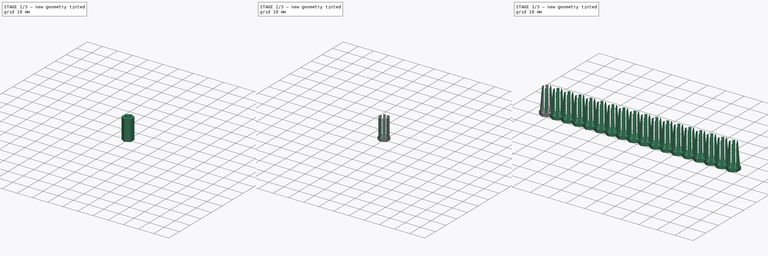
[diagram: build sequence overview — one tinted view per stage of 3, left to right]
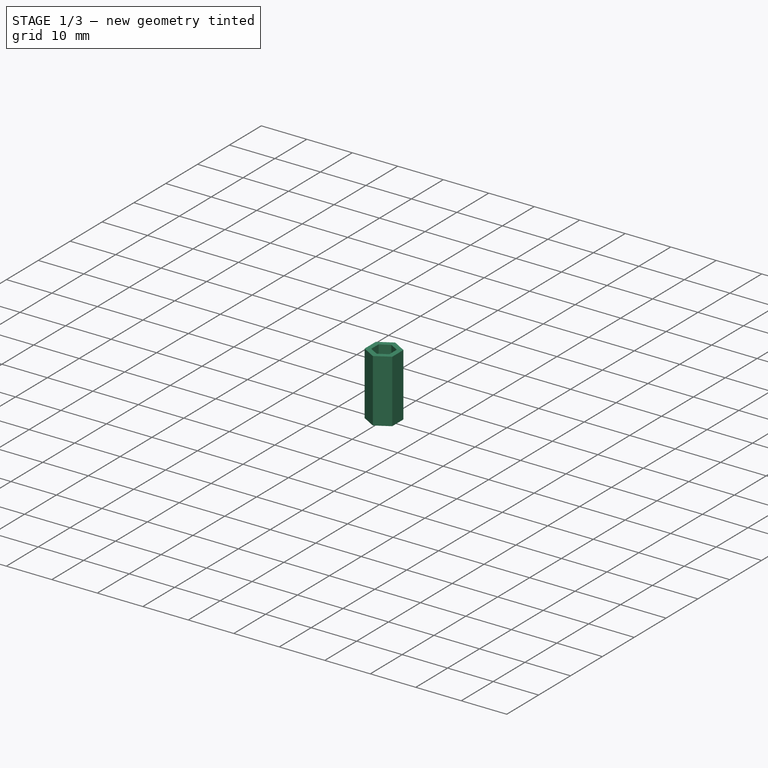
[diagram: stage 1 of 3 — iso view after this stage's code; geometry added in this stage tinted green]
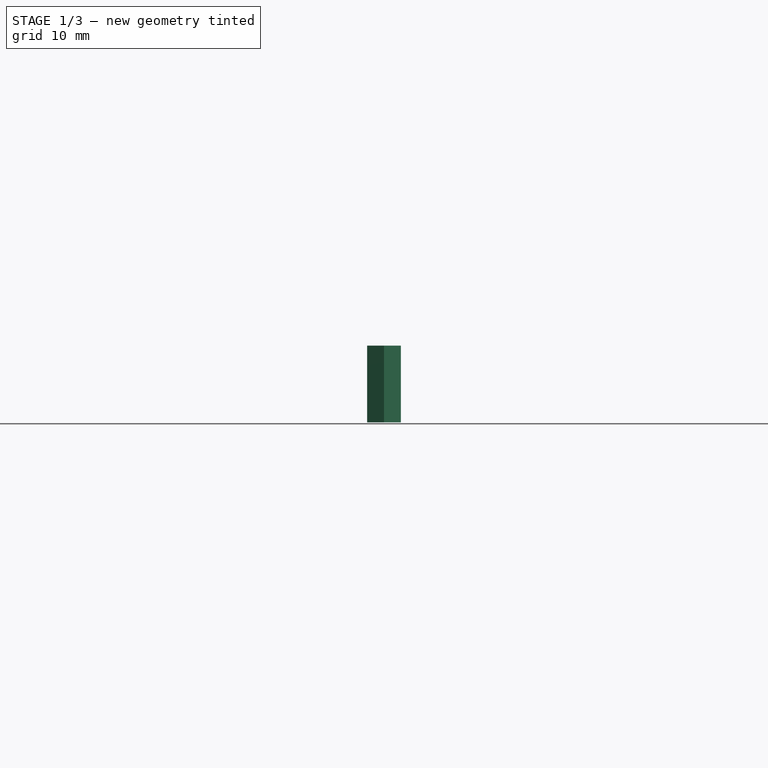
[diagram: stage 1 of 3 — front view after this stage's code; geometry added in this stage tinted green]
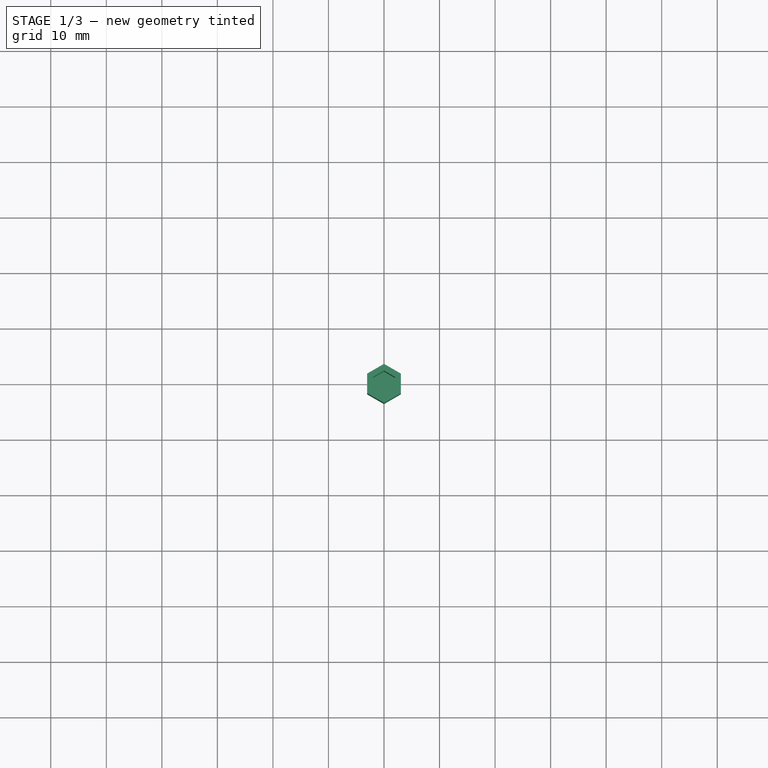
[diagram: stage 1 of 3 — top view after this stage's code; geometry added in this stage tinted green]
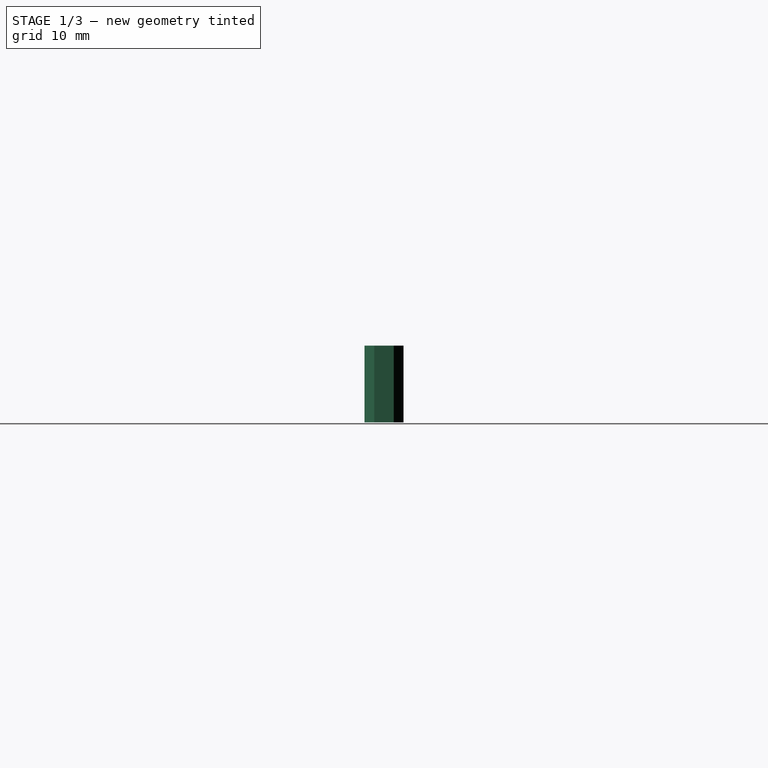
[diagram: stage 1 of 3 — right view after this stage's code; geometry added in this stage tinted green]
FCSTD DOCUMENT  (FreeCAD 1.0R39285 (Git))
Label: pla-4mm-18-tool-holder
License: All rights reserved
LicenseURL: http://en.wikipedia.org/wiki/All_rights_reserved
objects: Sketcher::SketchObject×3, PartDesign::Pad×2, PartDesign::Pocket×1, PartDesign::Chamfer×1, PartDesign::LinearPattern×1, PartDesign::Body×1
note: 21 computed .brp shape members not serialized (recipe doc carries the construction recipe); baked Part::Feature solids carry a one-line shape summary decoded from their .brp

FEATURE [Sketcher::SketchObject] Sketch
  ArcFitTolerance = 1e-06
  AttachmentSupport = -> [XY_Plane]
  FullyConstrained = true
  MakeInternals = false
  MapMode = 5
  sketch-geometry (14):
    g0: LineSegment StartX=0 StartY=-2.3094 StartZ=0 EndX=2 EndY=-1.1547 EndZ=0
    g1: LineSegment StartX=2 StartY=-1.1547 StartZ=0 EndX=2 EndY=1.1547 EndZ=0
    g2: LineSegment StartX=2 StartY=1.1547 StartZ=0 EndX=-2e-16 EndY=2.3094 EndZ=0
    g3: LineSegment StartX=-2e-16 StartY=2.3094 StartZ=0 EndX=-2 EndY=1.1547 EndZ=0
    g4: LineSegment StartX=-2 StartY=1.1547 StartZ=0 EndX=-2 EndY=-1.1547 EndZ=0
    g5: LineSegment StartX=-2 StartY=-1.1547 StartZ=0 EndX=0 EndY=-2.3094 EndZ=0
    g6: Circle [constr] CenterX=0 CenterY=0 CenterZ=0 NormalX=0 NormalY=0 NormalZ=1 AngleXU=0 Radius=2.3094
    g7: LineSegment StartX=-3.03923 StartY=-1.7547 StartZ=0 EndX=0 EndY=-3.5094 EndZ=0
    g8: LineSegment StartX=0 StartY=-3.5094 StartZ=0 EndX=3.03923 EndY=-1.7547 EndZ=0
    g9: LineSegment StartX=3.03923 StartY=-1.7547 StartZ=0 EndX=3.03923 EndY=1.7547 EndZ=0
    g10: LineSegment StartX=3.03923 StartY=1.7547 StartZ=0 EndX=0 EndY=3.5094 EndZ=0
    g11: LineSegment StartX=0 StartY=3.5094 StartZ=0 EndX=-3.03923 EndY=1.7547 EndZ=0
    g12: LineSegment StartX=-3.03923 StartY=1.7547 StartZ=0 EndX=-3.03923 EndY=-1.7547 EndZ=0
    g13: Circle [constr] CenterX=0 CenterY=0 CenterZ=0 NormalX=0 NormalY=0 NormalZ=1 AngleXU=0 Radius=3.5094
  constraints (32):
    c: Coincident(g0,g1)
    c: Coincident(g1,g2)
    c: Coincident(g2,g3)
    c: Coincident(g3,g4)
    c: Coincident(g4,g5)
    c: Coincident(g5,g0)
    c: Equal(g0, g1-g5) x5
    c: PointOnObject(g0,g6)
    c: PointOnObject(g1,g6)
    c: PointOnObject(g2,g6)
    c: PointOnObject(g3,g6)
    c: PointOnObject(g4,g6)
    c: PointOnObject(g5,g6)
    c: Coincident(g6,g-1)
    c: PointOnObject(g5,g-2)
    c: DistanceX(g3,g1) = 4
    c: Coincident(g7,g8)
    c: Coincident(g8,g9)
    c: Coincident(g9,g10)
    c: Coincident(g10,g11)
    c: Coincident(g11,g12)
    c: Coincident(g12,g7)
    c: Equal(g7, g8-g12) x5
    c: PointOnObject(g7,g13)
    c: PointOnObject(g8,g13)
    c: PointOnObject(g9,g13)
    c: PointOnObject(g10,g13)
    c: PointOnObject(g11,g13)
    c: PointOnObject(g12,g13)
    c: Coincident(g13,g6)
    c: PointOnObject(g7,g-2)
    c: DistanceY(g2,g10) = 1.2
FEATURE [PartDesign::Pad] Pad
  Direction = (0,0,1)
  Length = 12
  Length2 = 10
  Profile = -> Sketch
  ReferenceAxis = -> Sketch [N_Axis]
  Refine = true
  Suppressed = false
  Type = 0
FEATURE [Sketcher::SketchObject] Sketch001
  ArcFitTolerance = 1e-06
  AttachmentSupport = -> [Pad]
  ExternalGeometry = -> [Pad]
  FullyConstrained = true
  MakeInternals = false
  MapMode = 5
  Placement = pos=(0,0,0) rot=(1,0,0;3.14159rad)
  sketch-geometry (7):
    g0: LineSegment StartX=3.03923 StartY=-1.7547 StartZ=0 EndX=3.03923 EndY=1.7547 EndZ=0
    g1: LineSegment StartX=3.03923 StartY=1.7547 StartZ=0 EndX=4e-16 EndY=3.5094 EndZ=0
    g2: LineSegment StartX=4e-16 StartY=3.5094 StartZ=0 EndX=-3.03923 EndY=1.7547 EndZ=0
    g3: LineSegment StartX=-3.03923 StartY=1.7547 StartZ=0 EndX=-3.03923 EndY=-1.7547 EndZ=0
    g4: LineSegment StartX=-3.03923 StartY=-1.7547 StartZ=0 EndX=4e-16 EndY=-3.5094 EndZ=0
    g5: LineSegment StartX=2e-16 StartY=-3.5094 StartZ=0 EndX=3.03923 EndY=-1.7547 EndZ=0
    g6: Circle [constr] CenterX=0 CenterY=0 CenterZ=0 NormalX=0 NormalY=0 NormalZ=1 AngleXU=0 Radius=3.5094
  constraints (15):
    c: Coincident(g0,g1)
    c: Coincident(g1,g2)
    c: Coincident(g2,g3)
    c: Coincident(g3,g4)
    c: Coincident(g4,g5)
    c: Coincident(g5,g0)
    c: Equal(g0, g1-g5) x5
    c: PointOnObject(g0,g6)
    c: PointOnObject(g1,g6)
    c: PointOnObject(g2,g6)
    c: PointOnObject(g3,g6)
    c: PointOnObject(g4,g6)
    c: PointOnObject(g5,g6)
    c: Coincident(g6,g-1)
    c: Coincident(g5,g-5)
FEATURE [PartDesign::Pad] Pad001
  BaseFeature = -> Pad
  Direction = (0,0,-1)
  Length = 1.8
  Length2 = 10
  Profile = -> Sketch001
  ReferenceAxis = -> Sketch001 [N_Axis]
  Refine = true
  Suppressed = false
  Type = 0
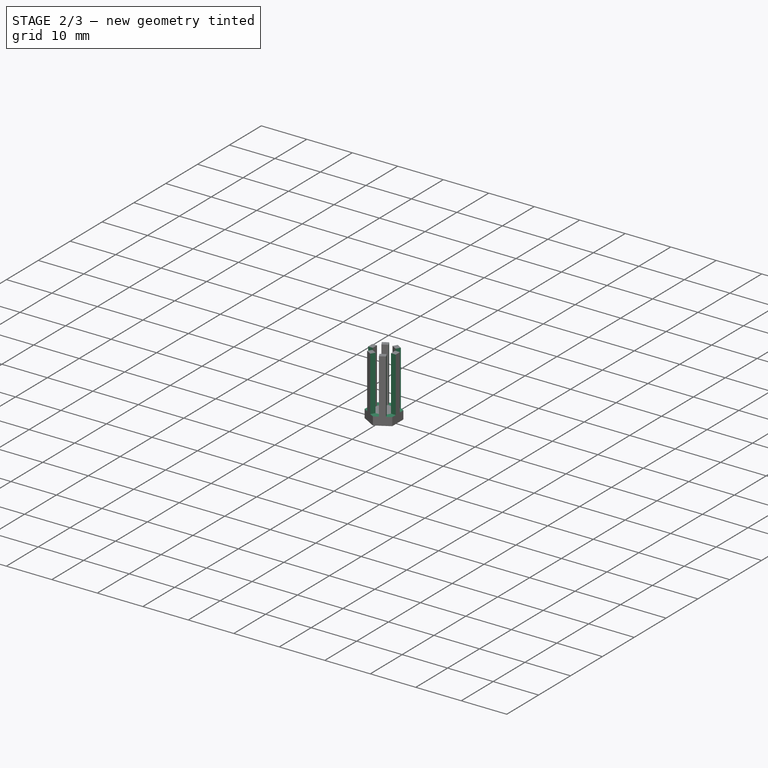
[diagram: stage 2 of 3 — iso view after this stage's code; geometry added in this stage tinted green]
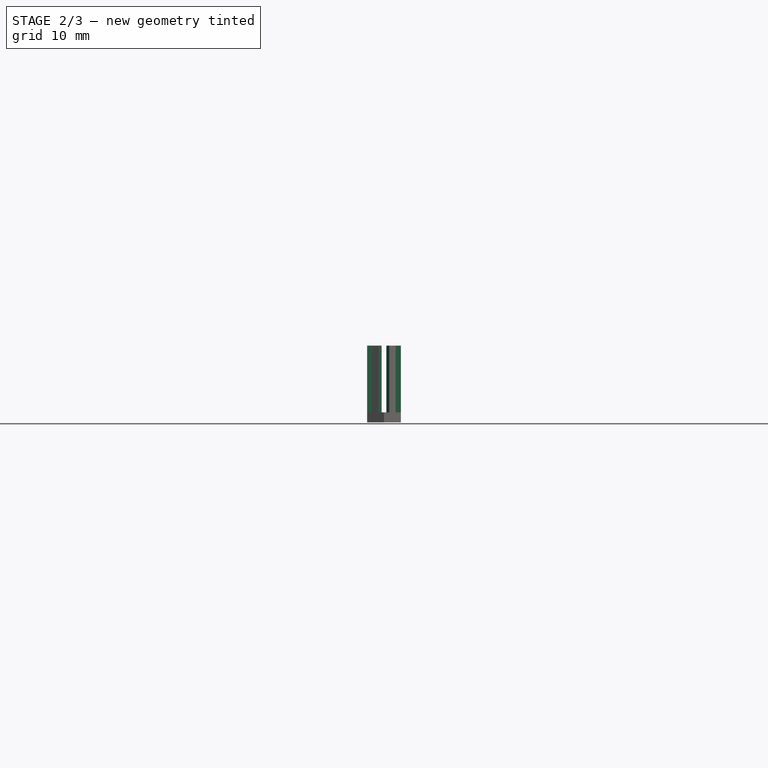
[diagram: stage 2 of 3 — front view after this stage's code; geometry added in this stage tinted green]
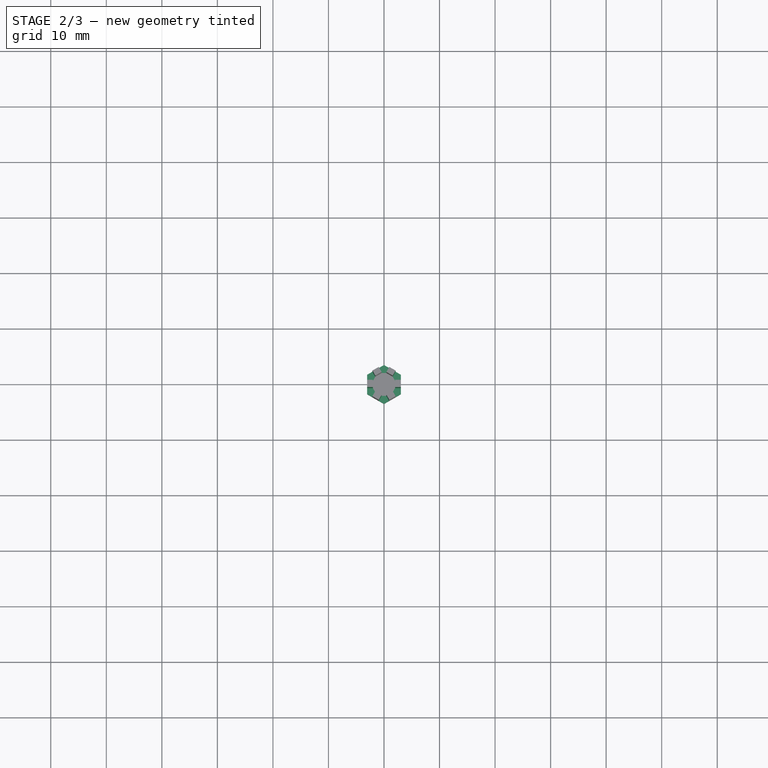
[diagram: stage 2 of 3 — top view after this stage's code; geometry added in this stage tinted green]
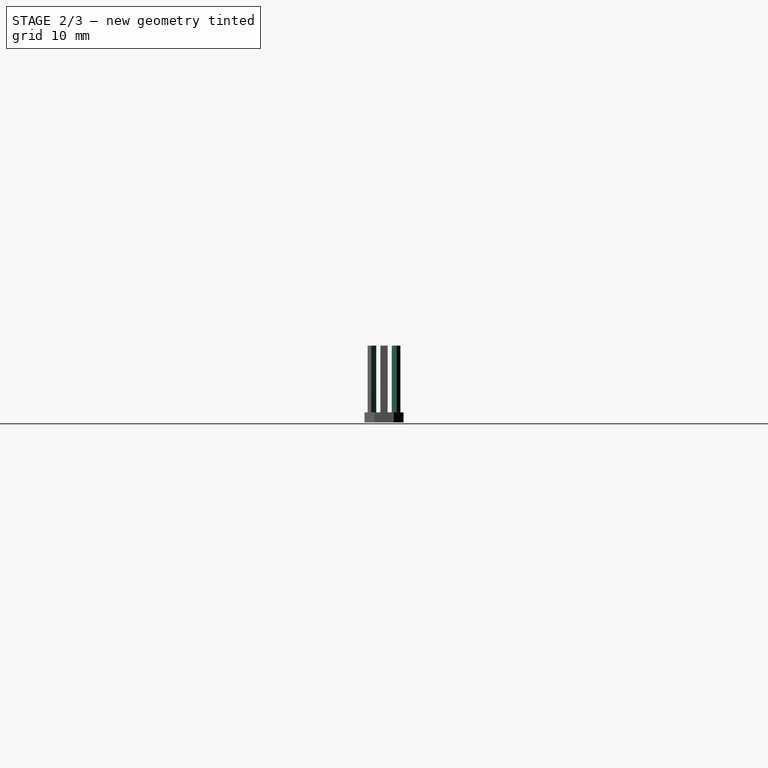
[diagram: stage 2 of 3 — right view after this stage's code; geometry added in this stage tinted green]
FEATURE [Sketcher::SketchObject] Sketch002
  ArcFitTolerance = 1e-06
  AttachmentSupport = -> [Pad001]
  ExternalGeometry = -> [Pad001]
  FullyConstrained = false
  MakeInternals = false
  MapMode = 5
  Placement = pos=(0,0,12) rot=(0,0,1;0rad)
  sketch-geometry (50):
    g0: LineSegment [constr] StartX=-3.03923 StartY=0.654701 StartZ=0 EndX=-3.03923 EndY=-0.654701 EndZ=0
    g1: LineSegment StartX=-3.03923 StartY=-0.654701 StartZ=0 EndX=-2 EndY=-0.654701 EndZ=0
    g2: LineSegment [constr] StartX=-2 StartY=-0.654701 StartZ=0 EndX=-2 EndY=0.654701 EndZ=0
    g3: LineSegment StartX=-2 StartY=0.654701 StartZ=0 EndX=-3.03923 EndY=0.654701 EndZ=0
    g4: LineSegment StartX=2 StartY=-0.654701 StartZ=0 EndX=3.03923 EndY=-0.654701 EndZ=0
    g5: LineSegment [constr] StartX=3.03923 StartY=-0.654701 StartZ=0 EndX=3.03923 EndY=0.654701 EndZ=0
    g6: LineSegment StartX=3.03923 StartY=0.654701 StartZ=0 EndX=2 EndY=0.654701 EndZ=0
    g7: LineSegment [constr] StartX=2 StartY=0.654701 StartZ=0 EndX=2 EndY=-0.654701 EndZ=0
    g8: LineSegment StartX=1.56699 StartY=1.4047 StartZ=0 EndX=2.0866 EndY=2.3047 EndZ=0
    g9: LineSegment [constr] StartX=2.0866 StartY=2.3047 StartZ=0 EndX=0.952628 EndY=2.9594 EndZ=0
    g10: LineSegment StartX=0.952628 StartY=2.9594 StartZ=0 EndX=0.433013 EndY=2.0594 EndZ=0
    g11: LineSegment [constr] StartX=0.433013 StartY=2.0594 StartZ=0 EndX=1.56699 EndY=1.4047 EndZ=0
    g12: LineSegment StartX=-0.433013 StartY=2.0594 StartZ=0 EndX=-0.952628 EndY=2.9594 EndZ=0
    g13: LineSegment [constr] StartX=-0.952628 StartY=2.9594 StartZ=0 EndX=-2.0866 EndY=2.3047 EndZ=0
    g14: LineSegment StartX=-2.0866 StartY=2.3047 StartZ=0 EndX=-1.56699 EndY=1.4047 EndZ=0
    g15: LineSegment [constr] StartX=-1.56699 StartY=1.4047 StartZ=0 EndX=-0.433013 EndY=2.0594 EndZ=0
    g16: LineSegment StartX=-1.56699 StartY=-1.4047 StartZ=0 EndX=-2.0866 EndY=-2.3047 EndZ=0
    g17: LineSegment [constr] StartX=-2.0866 StartY=-2.3047 StartZ=0 EndX=-0.952628 EndY=-2.9594 EndZ=0
    g18: LineSegment StartX=-0.952628 StartY=-2.9594 StartZ=0 EndX=-0.433013 EndY=-2.0594 EndZ=0
    g19: LineSegment [constr] StartX=-0.433013 StartY=-2.0594 StartZ=0 EndX=-1.56699 EndY=-1.4047 EndZ=0
    g20: LineSegment StartX=0.433013 StartY=-2.0594 StartZ=0 EndX=0.952628 EndY=-2.9594 EndZ=0
    g21: LineSegment [constr] StartX=0.952628 StartY=-2.9594 StartZ=0 EndX=2.0866 EndY=-2.3047 EndZ=0
    g22: LineSegment StartX=2.0866 StartY=-2.3047 StartZ=0 EndX=1.56699 EndY=-1.4047 EndZ=0
    g23: LineSegment [constr] StartX=1.56699 StartY=-1.4047 StartZ=0 EndX=0.433013 EndY=-2.0594 EndZ=0
    g24: LineSegment [constr] StartX=2.01248 StartY=3.48572 StartZ=0 EndX=-2.01248 EndY=-3.48572 EndZ=0
    g25: LineSegment [constr] StartX=-2.01248 StartY=3.48572 StartZ=0 EndX=2.01248 EndY=-3.48572 EndZ=0
    g26: LineSegment StartX=-2 StartY=0.654701 StartZ=0 EndX=-2 EndY=1.1547 EndZ=0
    g27: LineSegment StartX=-3.03923 StartY=0.654701 StartZ=0 EndX=-3.03923 EndY=1.7547 EndZ=0
    g28: LineSegment StartX=-0.952628 StartY=2.9594 StartZ=0 EndX=0 EndY=3.5094 EndZ=0
    g29: LineSegment StartX=-0.433013 StartY=2.0594 StartZ=0 EndX=0 EndY=2.3094 EndZ=0
    g30: LineSegment StartX=2.0866 StartY=2.3047 StartZ=0 EndX=3.03923 EndY=1.7547 EndZ=0
    g31: LineSegment StartX=2 StartY=0.654701 StartZ=0 EndX=2 EndY=1.1547 EndZ=0
    g32: LineSegment StartX=3.03923 StartY=-0.654701 StartZ=0 EndX=3.03923 EndY=-1.7547 EndZ=0
    g33: LineSegment StartX=3.03923 StartY=-1.7547 StartZ=0 EndX=2.0866 EndY=-2.3047 EndZ=0
    g34: LineSegment StartX=1.56699 StartY=-1.4047 StartZ=0 EndX=2 EndY=-1.1547 EndZ=0
    g35: LineSegment StartX=2 StartY=-1.1547 StartZ=0 EndX=2 EndY=-0.654701 EndZ=0
    g36: LineSegment StartX=3.03923 StartY=0.654701 StartZ=0 EndX=3.03923 EndY=1.7547 EndZ=0
    g37: LineSegment StartX=0.952628 StartY=2.9594 StartZ=0 EndX=0 EndY=3.5094 EndZ=0
    g38: LineSegment StartX=-3.03923 StartY=1.7547 StartZ=0 EndX=-2.0866 EndY=2.3047 EndZ=0
    g39: LineSegment StartX=-1.56699 StartY=1.4047 StartZ=0 EndX=-2 EndY=1.1547 EndZ=0
    g40: LineSegment StartX=-1.56699 StartY=-1.4047 StartZ=0 EndX=-2 EndY=-1.1547 EndZ=0
    g41: LineSegment StartX=-2 StartY=-1.1547 StartZ=0 EndX=-2 EndY=-0.654701 EndZ=0
    g42: LineSegment StartX=-3.03923 StartY=-0.654701 StartZ=0 EndX=-3.03923 EndY=-1.7547 EndZ=0
    g43: LineSegment StartX=-3.03923 StartY=-1.7547 StartZ=0 EndX=-2.0866 EndY=-2.3047 EndZ=0
    g44: LineSegment StartX=-0.952628 StartY=-2.9594 StartZ=0 EndX=1e-16 EndY=-3.5094 EndZ=0
    g45: LineSegment StartX=1e-16 StartY=-3.5094 StartZ=0 EndX=0.952628 EndY=-2.9594 EndZ=0
    g46: LineSegment StartX=0.433013 StartY=-2.0594 StartZ=0 EndX=0 EndY=-2.3094 EndZ=0
    g47: LineSegment StartX=0 StartY=-2.3094 StartZ=0 EndX=-0.433013 EndY=-2.0594 EndZ=0
    g48: LineSegment StartX=1.56699 StartY=1.4047 StartZ=0 EndX=2 EndY=1.1547 EndZ=0
    g49: LineSegment StartX=0 StartY=2.3094 StartZ=0 EndX=0.433013 EndY=2.0594 EndZ=0
  constraints (119):
    c: Coincident(g0,g1)
    c: Coincident(g1,g2)
    c: Coincident(g2,g3)
    c: Coincident(g3,g0)
    c: Vertical(g0)
    c: Horizontal(g1)
    c: Horizontal(g3)
    c: PointOnObject(g0,g-7)
    c: PointOnObject(g1,g-14)
    c: Coincident(g4,g5)
    c: Coincident(g5,g6)
    c: Coincident(g6,g7)
    c: Coincident(g7,g4)
    c: Horizontal(g4)
    c: Horizontal(g6)
    c: Vertical(g7)
    c: PointOnObject(g4,g-11)
    c: PointOnObject(g5,g-10)
    c: PointOnObject(g8,g-4)
    c: PointOnObject(g8,g-5)
    c: Coincident(g8,g9)
    c: PointOnObject(g9,g-5)
    c: Coincident(g9,g10)
    c: Coincident(g10,g11)
    c: Coincident(g11,g8)
    c: PointOnObject(g12,g-3)
    c: PointOnObject(g12,g-6)
    c: Coincident(g12,g13)
    c: PointOnObject(g13,g-6)
    c: Coincident(g13,g14)
    c: Coincident(g14,g15)
    c: Coincident(g15,g12)
    c: PointOnObject(g16,g-13)
    c: PointOnObject(g16,g-8)
    c: Coincident(g16,g17)
    c: PointOnObject(g17,g-8)
    c: Coincident(g17,g18)
    c: Coincident(g18,g19)
    c: Coincident(g19,g16)
    c: PointOnObject(g20,g-12)
    c: PointOnObject(g20,g-9)
    c: Coincident(g20,g21)
    c: Coincident(g21,g22)
    c: PointOnObject(g22,g-12)
    c: Coincident(g22,g23)
    c: Coincident(g23,g20)
    c: Parallel(g22,g20)
    c: Perpendicular(g-9,g22)
    c: Perpendicular(g-8,g18)
    c: Parallel(g16,g18)
    c: Perpendicular(g-3,g14)
    c: Parallel(g14,g12)
    c: Parallel(g10,g8)
    c: Perpendicular(g8,g-4)
    c: Equal(g11,g7)
    c: Equal(g7,g23)
    c: Equal(g23,g19)
    c: Equal(g19,g2)
    c: Equal(g2,g15)
    c: Symmetric(g5,g4,g-1)
    c: Symmetric(g1,g2,g-1)
    c: Symmetric(g-10,g-6,g24)
    c: Symmetric(g-10,g-9,g25)
    c: Symmetric(g21,g20,g25)
    c: Symmetric(g14,g12,g25)
    c: Symmetric(g10,g8,g24)
    c: Symmetric(g18,g16,g24)
    c: Distance(g20,g-13) = 0.5
    c: Symmetric(g24,g24,g-1)
    c: Symmetric(g25,g25,g-1)
    c: Equal(g25,g24)
    c: Coincident(g26,g2)
    c: Coincident(g26,g-14)
    c: Coincident(g27,g0)
    c: Coincident(g27,g-7)
    c: Coincident(g28,g12)
    c: Coincident(g28,g-6)
    c: Coincident(g29,g12)
    c: Coincident(g29,g-4)
    c: Coincident(g30,g8)
    c: Coincident(g30,g-10)
    c: Coincident(g31,g6)
    c: Coincident(g31,g-11)
    c: Coincident(g32,g4)
    c: Coincident(g32,g-10)
    c: Coincident(g33,g32)
    c: Coincident(g33,g21)
    c: Coincident(g34,g22)
    c: Coincident(g34,g-12)
    c: Coincident(g35,g34)
    c: Coincident(g35,g4)
    c: Coincident(g36,g5)
    c: Coincident(g36,g30)
    c: Coincident(g37,g9)
    c: Coincident(g37,g28)
    c: Coincident(g38,g27)
    c: Coincident(g38,g13)
    c: Coincident(g39,g14)
    c: Coincident(g39,g26)
    c: Coincident(g40,g16)
    c: Coincident(g40,g-14)
    c: Coincident(g41,g40)
    c: Coincident(g41,g1)
    c: Coincident(g42,g0)
    c: Coincident(g42,g-8)
    c: Coincident(g43,g42)
    c: Coincident(g43,g16)
    c: Coincident(g44,g17)
    c: Coincident(g44,g-9)
    c: Coincident(g45,g44)
    c: Coincident(g45,g20)
    c: Coincident(g46,g20)
    c: Coincident(g46,g-13)
    c: Coincident(g47,g46)
    c: Coincident(g47,g18)
    c: Coincident(g48,g8)
    c: Coincident(g48,g31)
    c: Coincident(g49,g29)
    c: Coincident(g49,g10)
FEATURE [PartDesign::Pocket] Pocket
  BaseFeature = -> Pad001
  Direction = (0,0,-1)
  Length = 0
  Length2 = 5
  Profile = -> Sketch002
  ReferenceAxis = -> Sketch002 [N_Axis]
  Refine = true
  Suppressed = false
  Type = 3
  UpToFace = -> Pad001 [Face10]
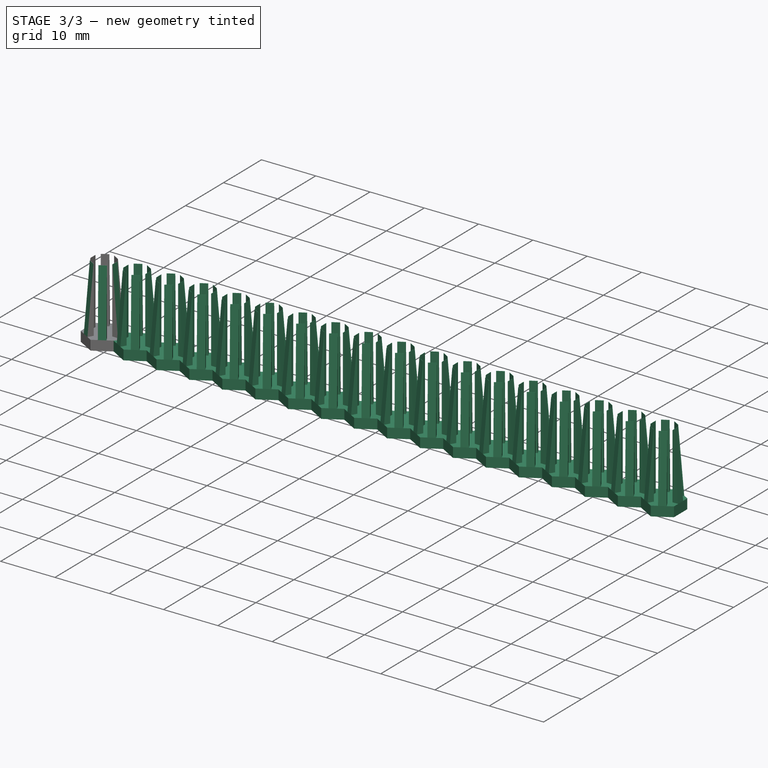
[diagram: stage 3 of 3 — iso view after this stage's code; geometry added in this stage tinted green]
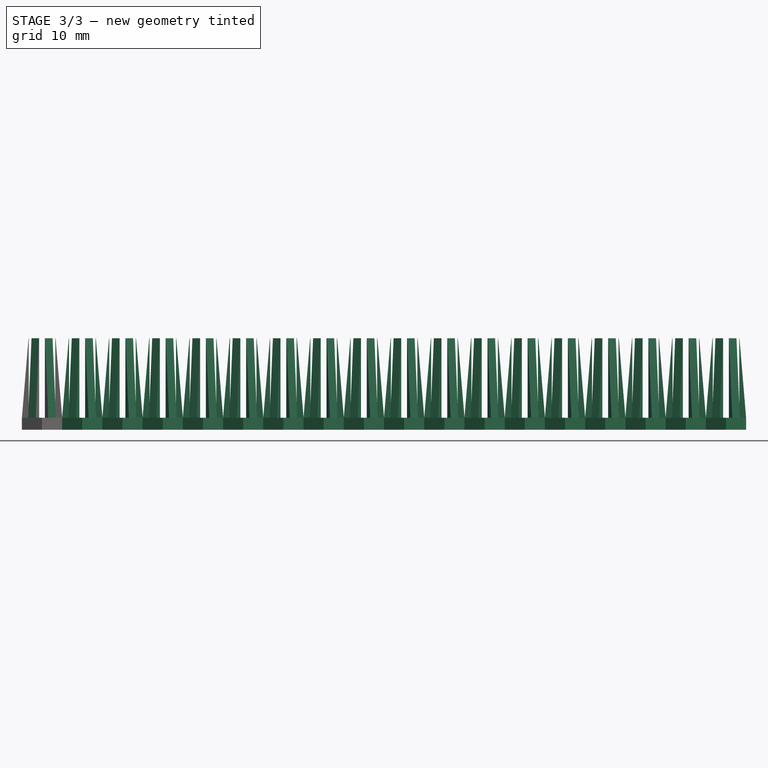
[diagram: stage 3 of 3 — front view after this stage's code; geometry added in this stage tinted green]
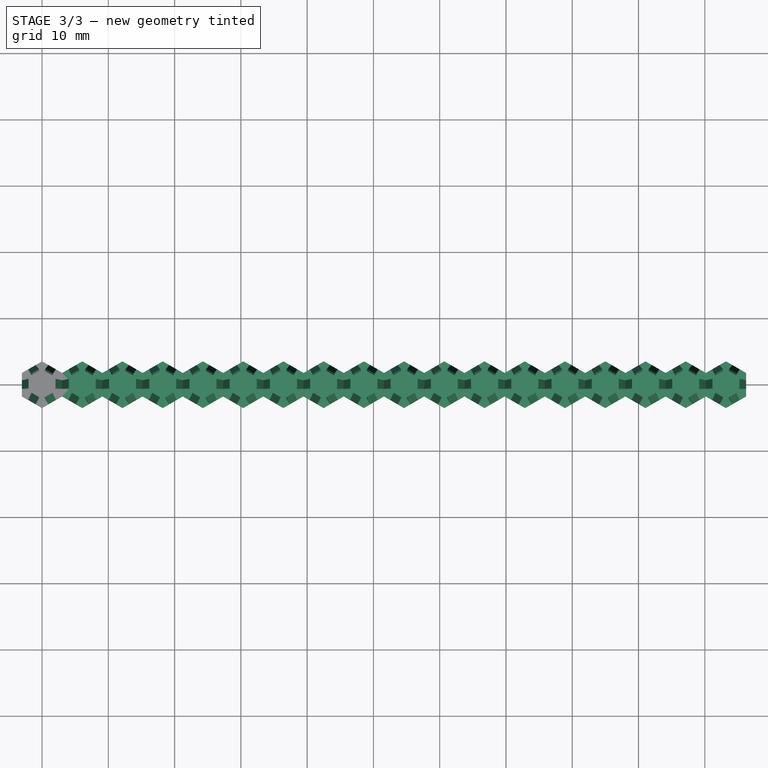
[diagram: stage 3 of 3 — top view after this stage's code; geometry added in this stage tinted green]
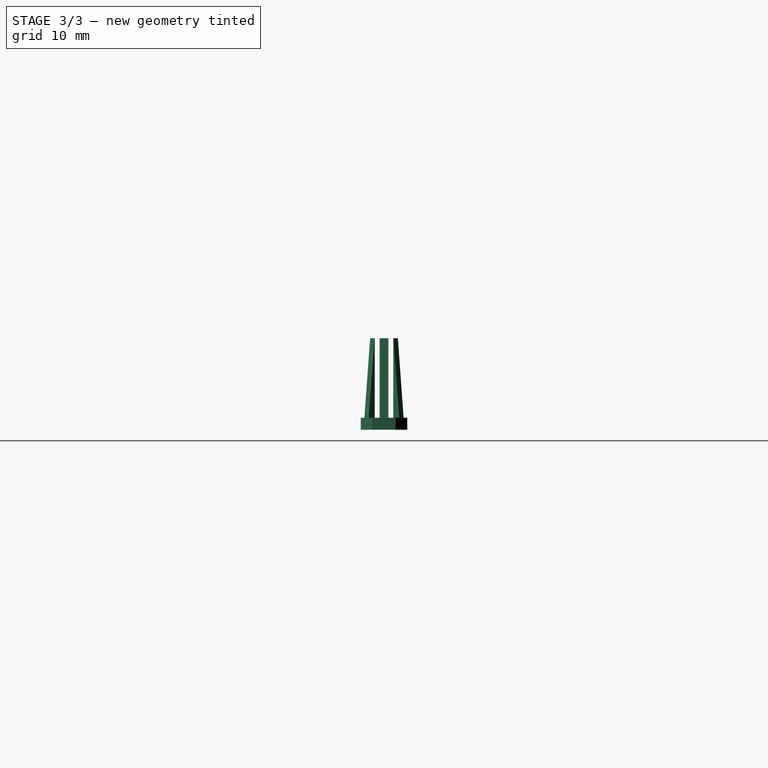
[diagram: stage 3 of 3 — right view after this stage's code; geometry added in this stage tinted green]
FEATURE [PartDesign::Chamfer] Chamfer
  Angle = 45
  Base = -> Pocket [Edge16,Edge23,Edge29,Edge35,Edge40,Edge9]
  BaseFeature = -> Pocket
  ChamferType = 1
  FlipDirection = false
  Refine = true
  Size = 12
  Size2 = 1
  SupportTransform = false
  Suppressed = false
  UseAllEdges = false
FEATURE [PartDesign::LinearPattern] LinearPattern
  BaseFeature = -> Chamfer
  Direction = -> X_Axis
  Length = 103.19
  Mode = 1
  Occurrences = 18
  Offset = 6.07
  Originals = -> [Chamfer]
  Refine = true
  Suppressed = false
  TransformMode = 1
FEATURE [PartDesign::Body] Body
  AllowCompound = false
  Group = -> [Sketch,Pad,Sketch001,Pad001,Sketch002,Pocket,Chamfer,LinearPattern]
  Origin = -> Origin
  Tip = -> LinearPattern
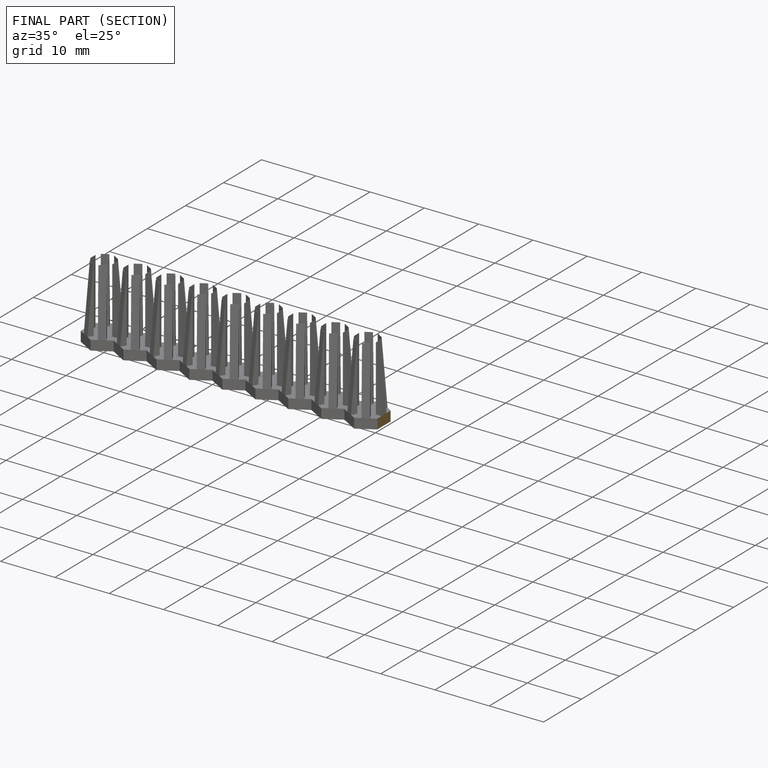
[diagram: finished part — half-section view (interior)]
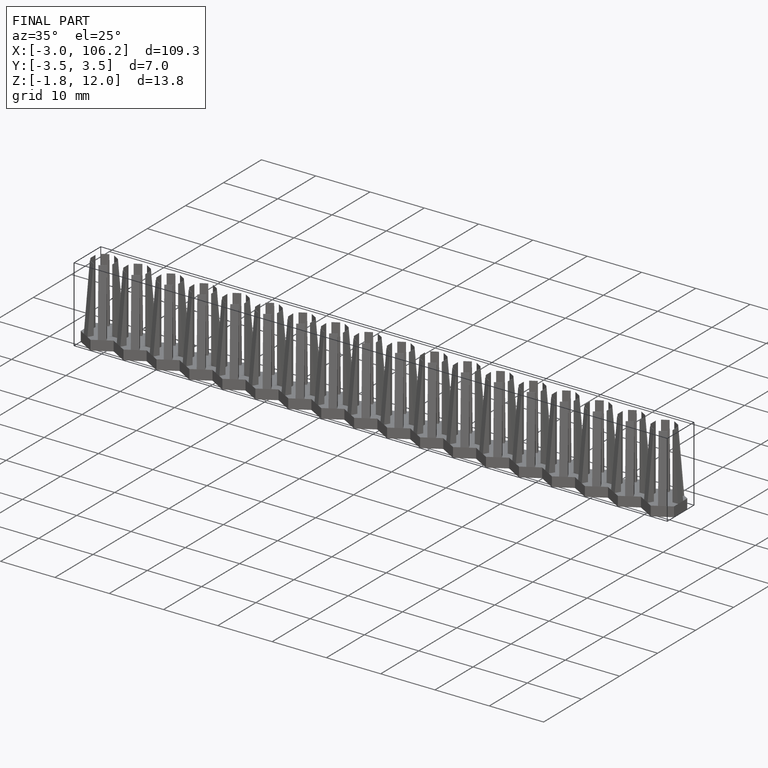
[diagram: finished part — iso view with bounding-box wireframe]
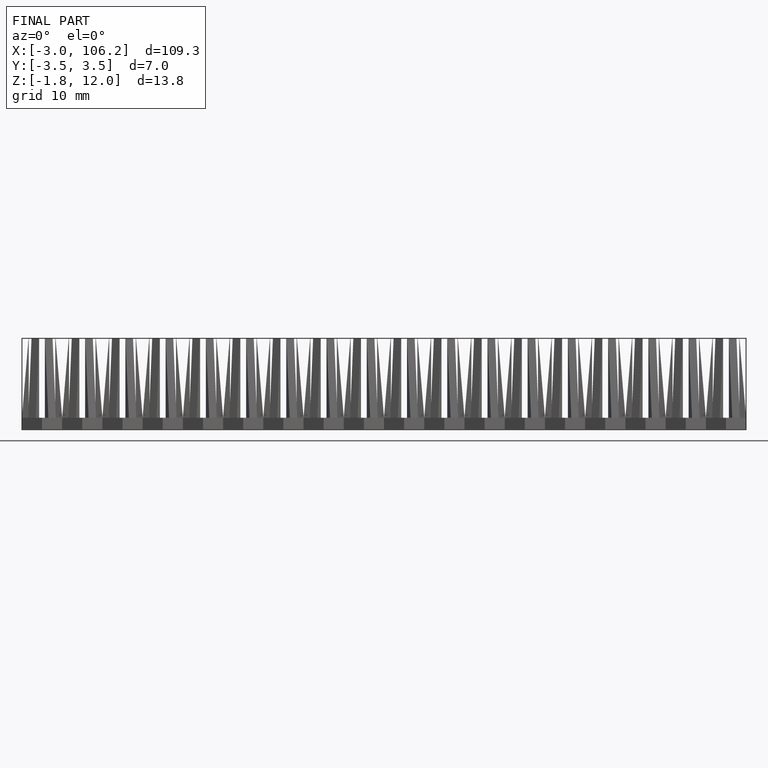
[diagram: finished part — front view with bounding-box wireframe]
